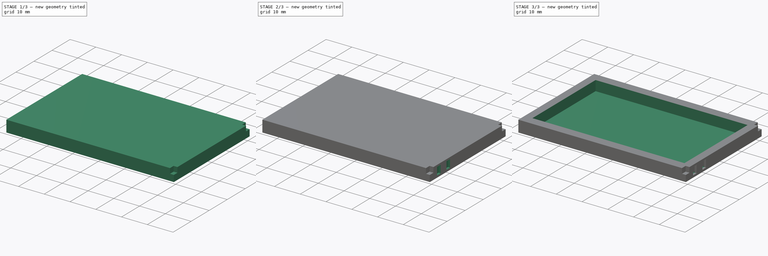
[diagram: build sequence overview — one tinted view per stage of 3, left to right]
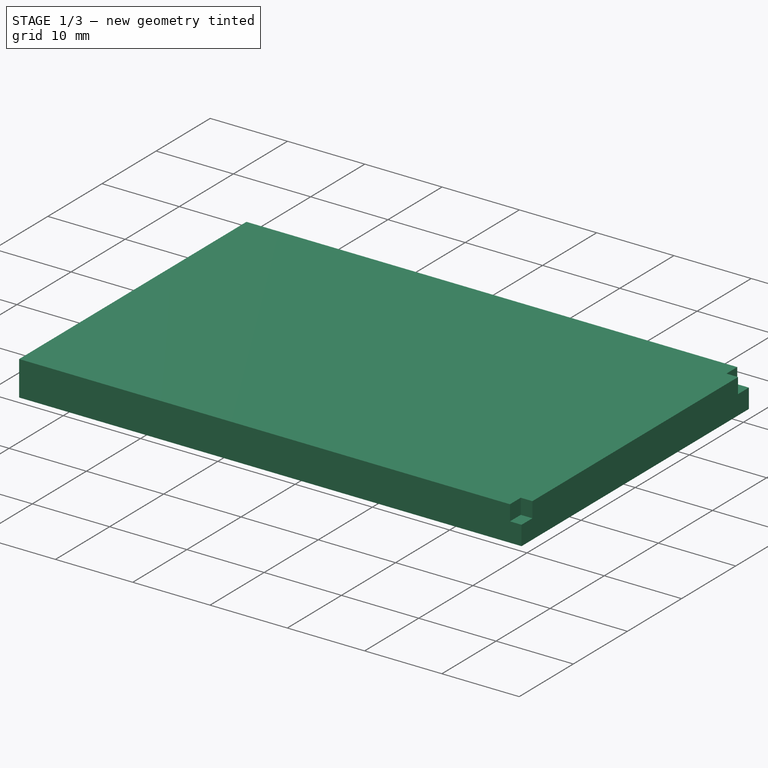
[diagram: stage 1 of 3 — iso view after this stage's code; geometry added in this stage tinted green]
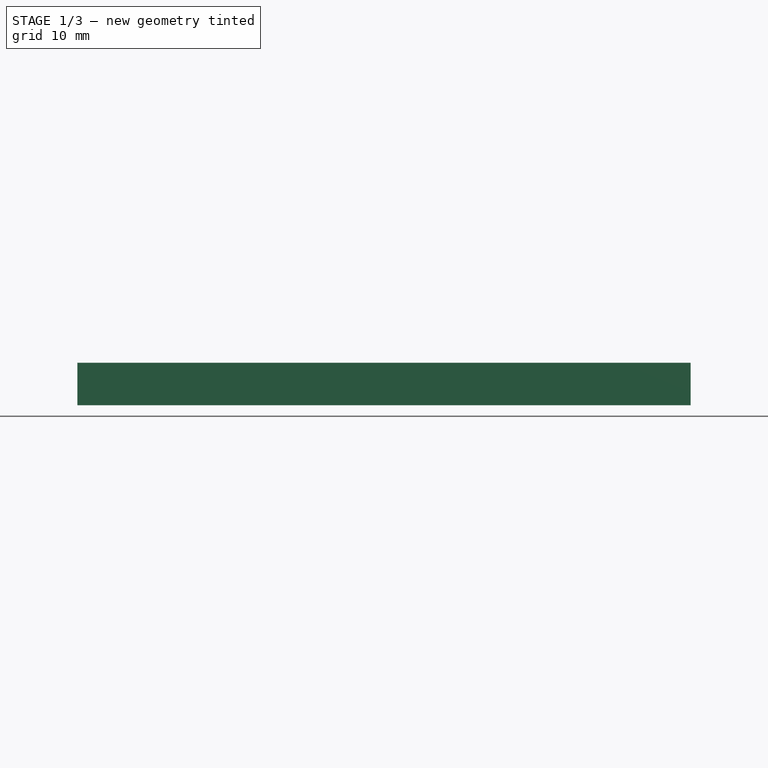
[diagram: stage 1 of 3 — front view after this stage's code; geometry added in this stage tinted green]
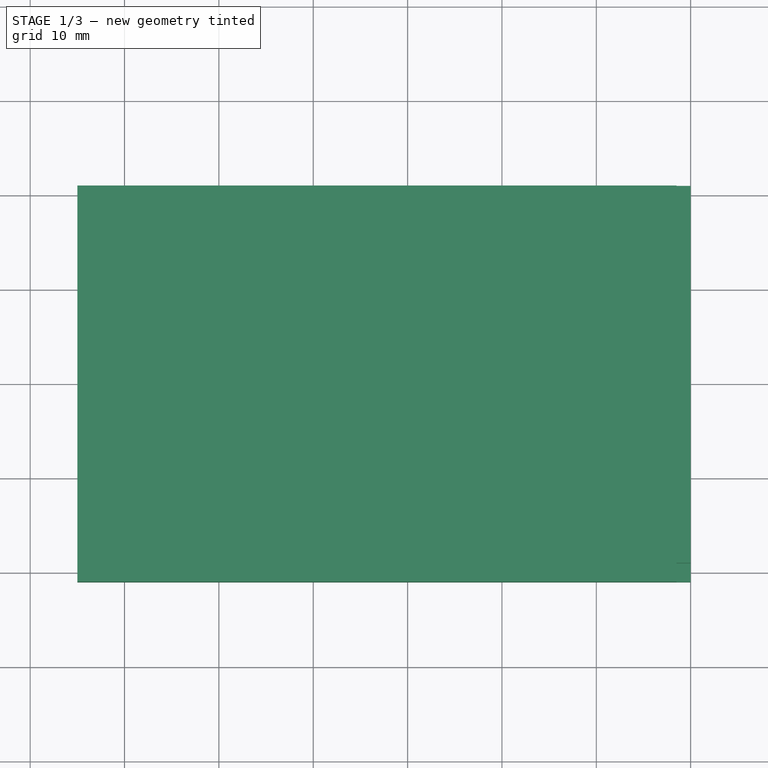
[diagram: stage 1 of 3 — top view after this stage's code; geometry added in this stage tinted green]
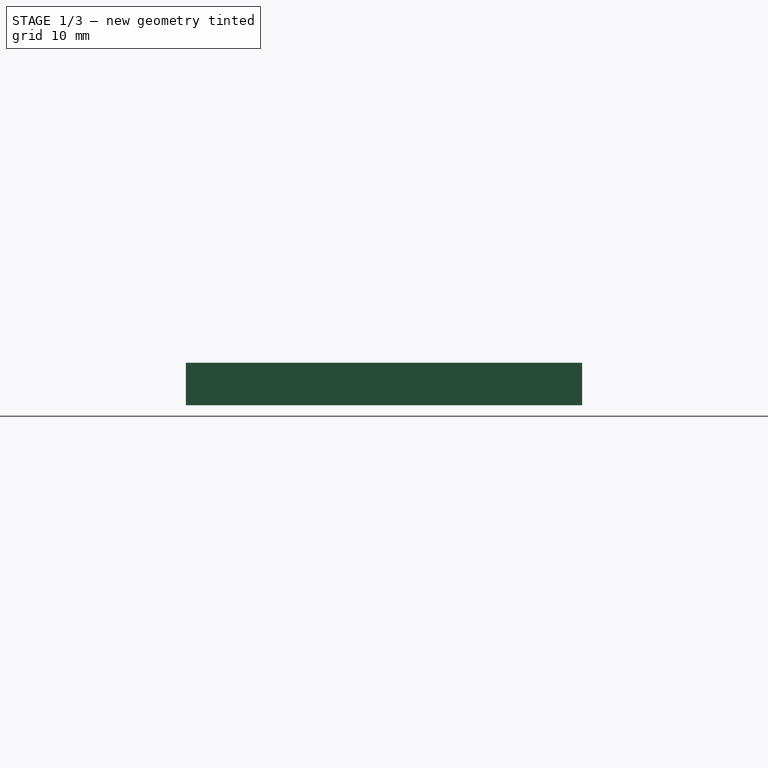
[diagram: stage 1 of 3 — right view after this stage's code; geometry added in this stage tinted green]
FCSTD DOCUMENT  (FreeCAD 0.18R14995 (Git))
Label: ZTEBatteryPowerAdapter
License: All rights reserved
LicenseURL: http://en.wikipedia.org/wiki/All_rights_reserved
objects: Sketcher::SketchObject×5, PartDesign::Pocket×4, PartDesign::Pad×1, PartDesign::Body×1, App::Part×1
note: 16 computed .brp shape members not serialized (recipe doc carries the construction recipe); baked Part::Feature solids carry a one-line shape summary decoded from their .brp

FEATURE [Sketcher::SketchObject] Sketch  label="BaseSketch"
  MapMode = 5
  Support = -> [XY_Plane001]
  sketch-geometry (4):
    g0: LineSegment StartX=-65 StartY=21 StartZ=0 EndX=0 EndY=21 EndZ=0
    g1: LineSegment StartX=0 StartY=21 StartZ=0 EndX=0 EndY=-21 EndZ=0
    g2: LineSegment StartX=0 StartY=-21 StartZ=0 EndX=-65 EndY=-21 EndZ=0
    g3: LineSegment StartX=-65 StartY=-21 StartZ=0 EndX=-65 EndY=21 EndZ=0
  constraints (11):
    c: Coincident(g0,g1)
    c: Coincident(g1,g2)
    c: Coincident(g2,g3)
    c: Coincident(g3,g0)
    c: Horizontal(g0)
    c: Vertical(g3)
    c: Symmetric(g1,g0,g-1)
    c: Distance(g0) = 65
    c: Distance(g3) = 42
    c: Horizontal(g2)
    c: PointOnObject(g1,g-2)
FEATURE [PartDesign::Pad] Pad  label="BasePad"
  Length = 4.5
  Length2 = 100
  Profile = -> Sketch
  Reversed = true
  Type = 0
FEATURE [Sketcher::SketchObject] Sketch001  label="CkipSketch"
  ExternalGeometry = -> [Sketch]
  MapMode = 5
  Placement = pos=(0,0,0) rot=(0.57735,0.57735,0.57735;2.0944rad)
  Support = -> [YZ_Plane001]
  sketch-geometry (8):
    g0: LineSegment StartX=-21 StartY=-1e-11 StartZ=0 EndX=-19 EndY=-1e-11 EndZ=0
    g1: LineSegment StartX=-19 StartY=-1e-11 StartZ=0 EndX=-19 EndY=-2 EndZ=0
    g2: LineSegment StartX=-19 StartY=-2 StartZ=0 EndX=-21 EndY=-2 EndZ=0
    g3: LineSegment StartX=-21 StartY=-2 StartZ=0 EndX=-21 EndY=-1e-11 EndZ=0
    g4: LineSegment StartX=21 StartY=-5e-12 StartZ=0 EndX=19 EndY=-5e-12 EndZ=0
    g5: LineSegment StartX=19 StartY=-5e-12 StartZ=0 EndX=19 EndY=-2 EndZ=0
    g6: LineSegment StartX=19 StartY=-2 StartZ=0 EndX=21 EndY=-2 EndZ=0
    g7: LineSegment StartX=21 StartY=-2 StartZ=0 EndX=21 EndY=-5e-12 EndZ=0
  constraints (22):
    c: Coincident(g0,g1)
    c: Coincident(g1,g2)
    c: Coincident(g2,g3)
    c: Coincident(g3,g0)
    c: Horizontal(g0)
    c: Horizontal(g2)
    c: Vertical(g1)
    c: Vertical(g3)
    c: Coincident(g0,g-3)
    c: Coincident(g4,g5)
    c: Coincident(g5,g6)
    c: Coincident(g6,g7)
    c: Coincident(g7,g4)
    c: Horizontal(g4)
    c: Horizontal(g6)
    c: Vertical(g5)
    c: Vertical(g7)
    c: Coincident(g4,g-4)
    c: Equal(g2,g6)
    c: Equal(g1,g5)
    c: Equal(g1,g2)
    c: Distance(g0) = 2
FEATURE [PartDesign::Pocket] Pocket  label="ClipPocket"
  BaseFeature = -> Pad
  Length = 1.5
  Length2 = 100
  Profile = -> Sketch001
  Type = 0
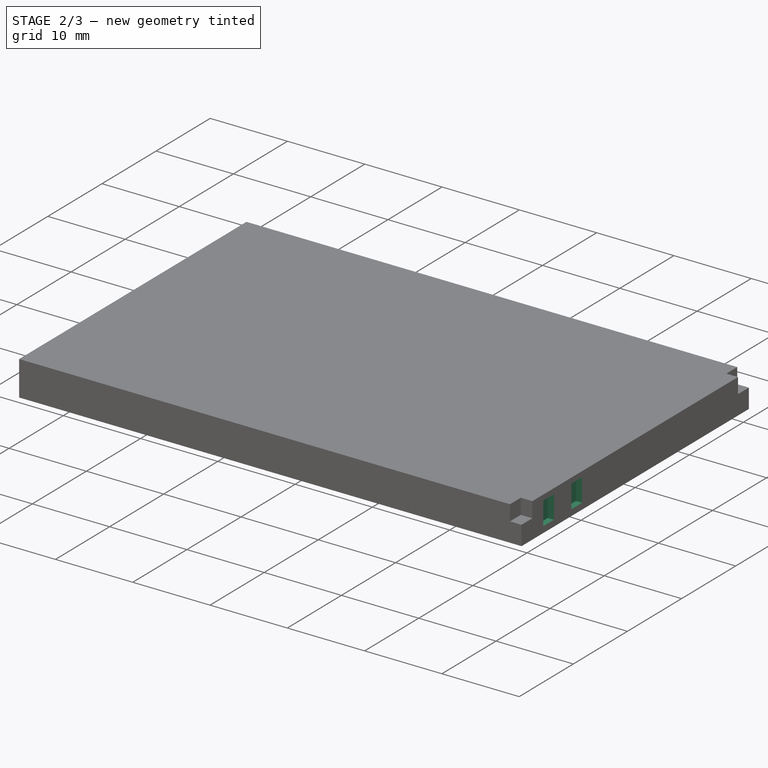
[diagram: stage 2 of 3 — iso view after this stage's code; geometry added in this stage tinted green]
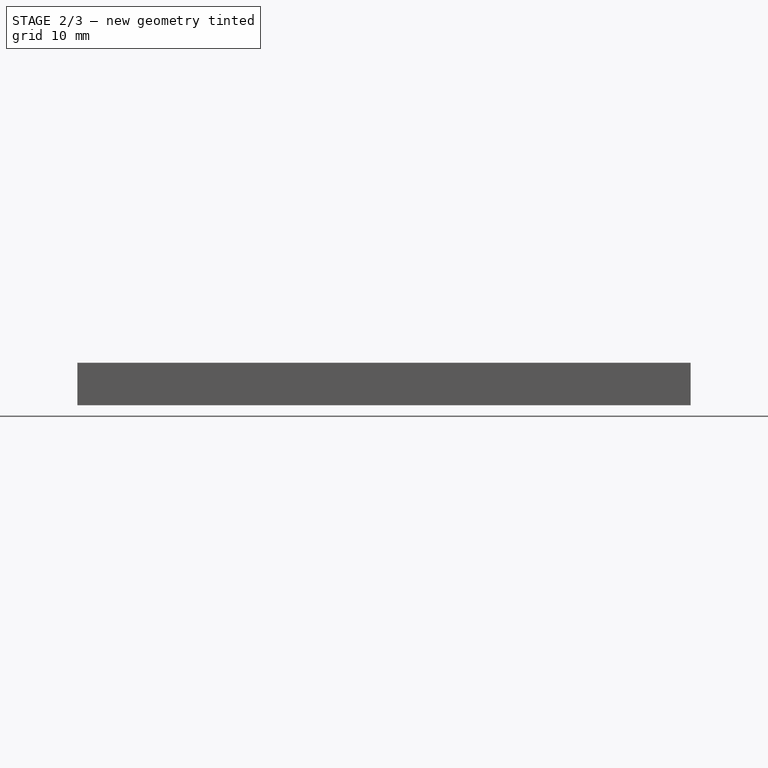
[diagram: stage 2 of 3 — front view after this stage's code; geometry added in this stage tinted green]
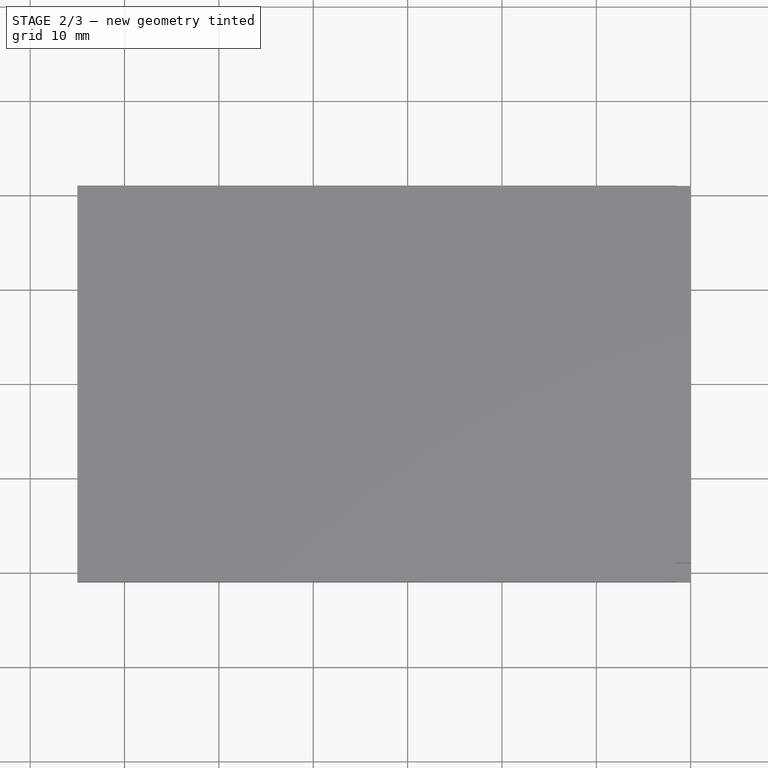
[diagram: stage 2 of 3 — top view after this stage's code; geometry added in this stage tinted green]
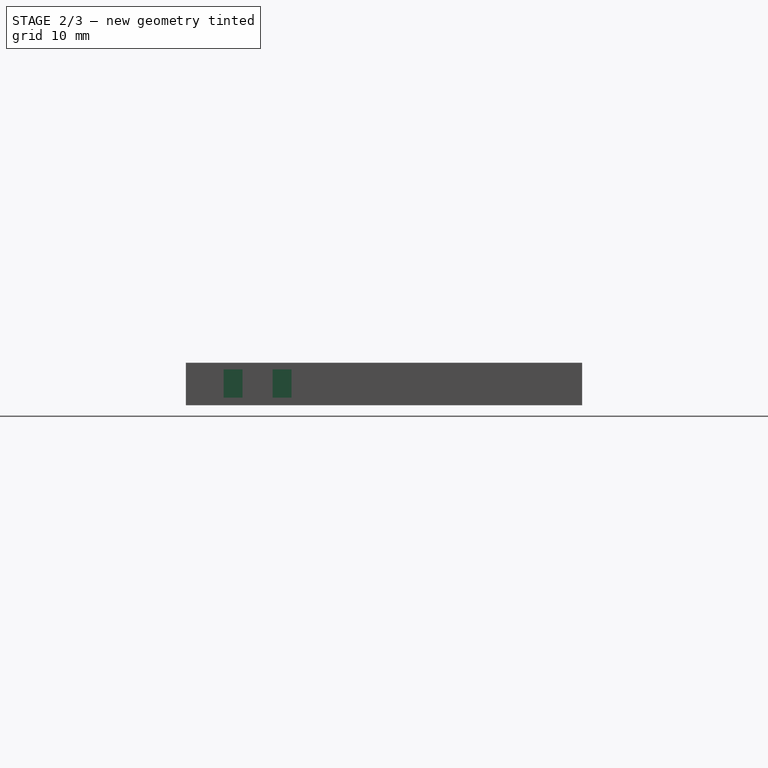
[diagram: stage 2 of 3 — right view after this stage's code; geometry added in this stage tinted green]
FEATURE [Sketcher::SketchObject] Sketch002  label="ContactPadsSketch"
  ExternalGeometry = -> [Sketch]
  MapMode = 5
  Placement = pos=(0,0,0) rot=(0.57735,0.57735,0.57735;2.0944rad)
  Support = -> [YZ_Plane001]
  sketch-geometry (9):
    g0: LineSegment StartX=-17 StartY=-0.7 StartZ=0 EndX=-15 EndY=-0.7 EndZ=0
    g1: LineSegment StartX=-15 StartY=-0.7 StartZ=0 EndX=-15 EndY=-3.7 EndZ=0
    g2: LineSegment StartX=-15 StartY=-3.7 StartZ=0 EndX=-17 EndY=-3.7 EndZ=0
    g3: LineSegment StartX=-17 StartY=-3.7 StartZ=0 EndX=-17 EndY=-0.7 EndZ=0
    g4: LineSegment StartX=-11.8 StartY=-0.7 StartZ=0 EndX=-9.8 EndY=-0.7 EndZ=0
    g5: LineSegment StartX=-9.8 StartY=-0.7 StartZ=0 EndX=-9.8 EndY=-3.7 EndZ=0
    g6: LineSegment StartX=-9.8 StartY=-3.7 StartZ=0 EndX=-11.8 EndY=-3.7 EndZ=0
    g7: LineSegment StartX=-11.8 StartY=-3.7 StartZ=0 EndX=-11.8 EndY=-0.7 EndZ=0
    g8: LineSegment [constr] StartX=-15 StartY=-0.7 StartZ=0 EndX=-11.8 EndY=-0.7 EndZ=0
  constraints (26):
    c: Coincident(g0,g1)
    c: Coincident(g1,g2)
    c: Coincident(g2,g3)
    c: Coincident(g3,g0)
    c: Horizontal(g0)
    c: Horizontal(g2)
    c: Vertical(g1)
    c: Vertical(g3)
    c: Coincident(g4,g5)
    c: Coincident(g5,g6)
    c: Coincident(g6,g7)
    c: Coincident(g7,g4)
    c: Horizontal(g4)
    c: Horizontal(g6)
    c: Vertical(g5)
    c: Vertical(g7)
    c: Equal(g0,g4)
    c: Equal(g1,g7)
    c: Coincident(g8,g4)
    c: Horizontal(g8)
    c: Coincident(g8,g0)
    c: Distance(g8) = 3.2
    c: Distance(g0) = 2
    c: Distance(g5) = 3
    c: Distance(g-3,g3) = 4
    c: DistanceY(g-1,g0) = -0.7
FEATURE [PartDesign::Pocket] Pocket001  label="ContactPadsPocket"
  BaseFeature = -> Pocket
  Length = 0.8
  Length2 = 100
  Profile = -> Sketch002
  Type = 0
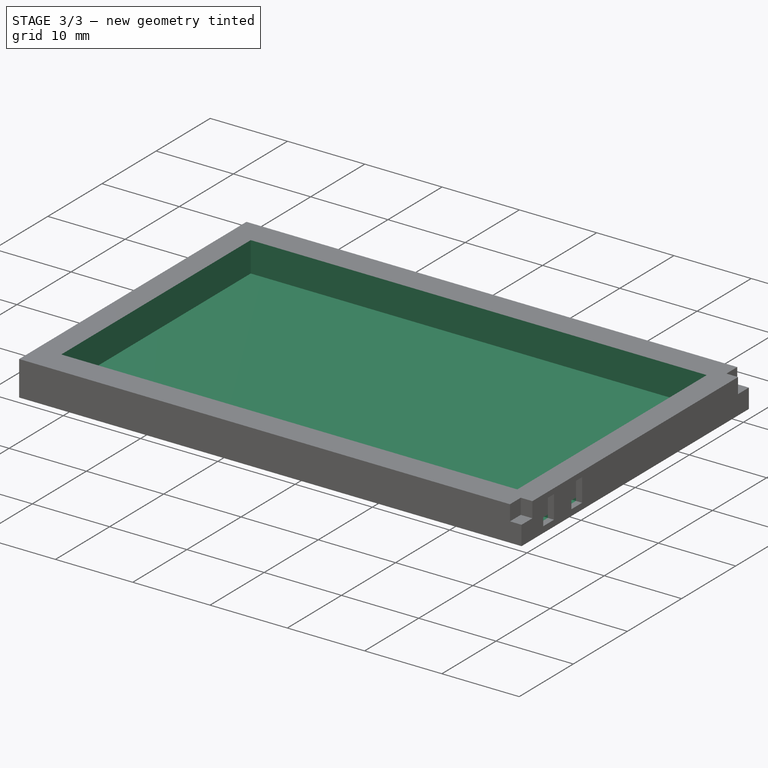
[diagram: stage 3 of 3 — iso view after this stage's code; geometry added in this stage tinted green]
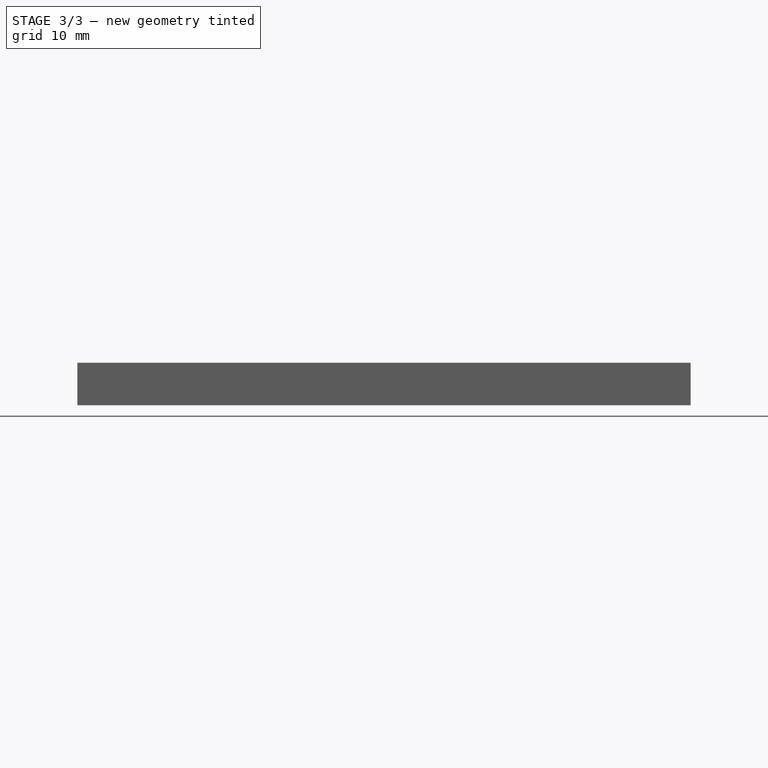
[diagram: stage 3 of 3 — front view after this stage's code; geometry added in this stage tinted green]
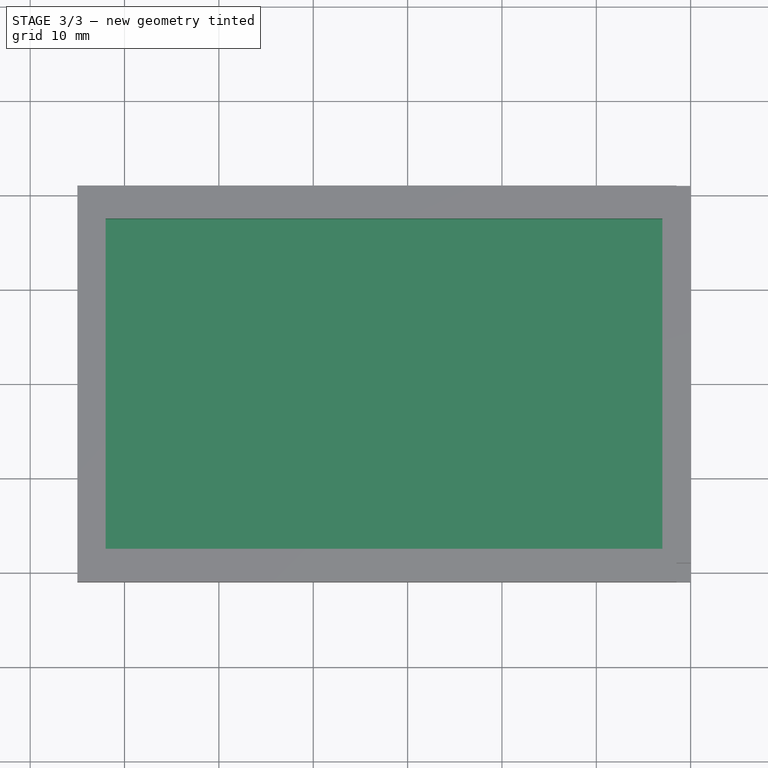
[diagram: stage 3 of 3 — top view after this stage's code; geometry added in this stage tinted green]
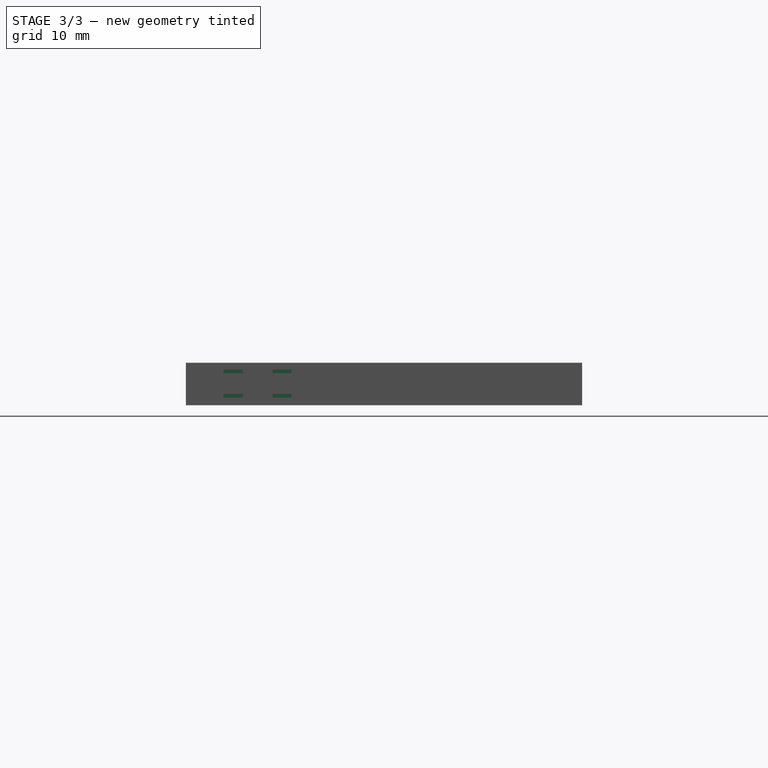
[diagram: stage 3 of 3 — right view after this stage's code; geometry added in this stage tinted green]
FEATURE [Sketcher::SketchObject] Sketch003  label="WiringNotchSketch"
  MapMode = 5
  Support = -> [XY_Plane001]
  sketch-geometry (4):
    g0: LineSegment StartX=-3 StartY=17.5 StartZ=0 EndX=-62 EndY=17.5 EndZ=0
    g1: LineSegment StartX=-62 StartY=17.5 StartZ=0 EndX=-62 EndY=-17.5 EndZ=0
    g2: LineSegment StartX=-62 StartY=-17.5 StartZ=0 EndX=-3 EndY=-17.5 EndZ=0
    g3: LineSegment StartX=-3 StartY=-17.5 StartZ=0 EndX=-3 EndY=17.5 EndZ=0
  constraints (11):
    c: Coincident(g0,g1)
    c: Coincident(g1,g2)
    c: Coincident(g2,g3)
    c: Coincident(g3,g0)
    c: Horizontal(g0)
    c: Horizontal(g2)
    c: Vertical(g1)
    c: Distance(g-1,g3) = 3
    c: Distance(g-1,g1) = 62
    c: Symmetric(g2,g0,g-1)
    c: Distance(g3) = 35
FEATURE [PartDesign::Pocket] Pocket002  label="WiringNotchPocket"
  BaseFeature = -> Pocket001
  Length = 3.9
  Length2 = 100
  Profile = -> Sketch003
  Type = 0
FEATURE [Sketcher::SketchObject] Sketch004  label="ContactPadsWiringNotchSketch"
  ExternalGeometry = -> [Sketch002]
  MapMode = 5
  Placement = pos=(0,0,0) rot=(0.57735,0.57735,0.57735;2.0944rad)
  Support = -> [YZ_Plane001]
  sketch-geometry (16):
    g0: LineSegment StartX=-17 StartY=-0.7 StartZ=0 EndX=-15 EndY=-0.7 EndZ=0
    g1: LineSegment StartX=-15 StartY=-0.7 StartZ=0 EndX=-15 EndY=-1.1 EndZ=0
    g2: LineSegment StartX=-15 StartY=-1.1 StartZ=0 EndX=-17 EndY=-1.1 EndZ=0
    g3: LineSegment StartX=-17 StartY=-1.1 StartZ=0 EndX=-17 EndY=-0.7 EndZ=0
    g4: LineSegment StartX=-17 StartY=-3.7 StartZ=0 EndX=-15 EndY=-3.7 EndZ=0
    g5: LineSegment StartX=-15 StartY=-3.7 StartZ=0 EndX=-15 EndY=-3.3 EndZ=0
    g6: LineSegment StartX=-15 StartY=-3.3 StartZ=0 EndX=-17 EndY=-3.3 EndZ=0
    g7: LineSegment StartX=-17 StartY=-3.3 StartZ=0 EndX=-17 EndY=-3.7 EndZ=0
    g8: LineSegment StartX=-11.8 StartY=-0.7 StartZ=0 EndX=-9.8 EndY=-0.7 EndZ=0
    g9: LineSegment StartX=-9.8 StartY=-0.7 StartZ=0 EndX=-9.8 EndY=-1.1 EndZ=0
    g10: LineSegment StartX=-9.8 StartY=-1.1 StartZ=0 EndX=-11.8 EndY=-1.1 EndZ=0
    g11: LineSegment StartX=-11.8 StartY=-1.1 StartZ=0 EndX=-11.8 EndY=-0.7 EndZ=0
    g12: LineSegment StartX=-11.8 StartY=-3.7 StartZ=0 EndX=-9.8 EndY=-3.7 EndZ=0
    g13: LineSegment StartX=-9.8 StartY=-3.7 StartZ=0 EndX=-9.8 EndY=-3.3 EndZ=0
    g14: LineSegment StartX=-9.8 StartY=-3.3 StartZ=0 EndX=-11.8 EndY=-3.3 EndZ=0
    g15: LineSegment StartX=-11.8 StartY=-3.3 StartZ=0 EndX=-11.8 EndY=-3.7 EndZ=0
  constraints (44):
    c: Coincident(g0,g1)
    c: Coincident(g1,g2)
    c: Coincident(g2,g3)
    c: Coincident(g3,g0)
    c: Horizontal(g0)
    c: Horizontal(g2)
    c: Vertical(g1)
    c: Vertical(g3)
    c: Coincident(g0,g-3)
    c: PointOnObject(g1,g-4)
    c: Coincident(g4,g5)
    c: Coincident(g5,g6)
    c: Coincident(g6,g7)
    c: Coincident(g7,g4)
    c: Horizontal(g4)
    c: Horizontal(g6)
    c: Vertical(g5)
    c: Vertical(g7)
    c: Coincident(g4,g-3)
    c: PointOnObject(g5,g-4)
    c: Coincident(g8,g9)
    c: Coincident(g9,g10)
    c: Coincident(g10,g11)
    c: Coincident(g11,g8)
    c: Horizontal(g8)
    c: Horizontal(g10)
    c: Vertical(g9)
    c: Vertical(g11)
    c: Coincident(g8,g-5)
    c: PointOnObject(g9,g-6)
    c: Coincident(g12,g13)
    c: Coincident(g13,g14)
    c: Coincident(g14,g15)
    c: Coincident(g15,g12)
    c: Horizontal(g12)
    c: Horizontal(g14)
    c: Vertical(g13)
    c: Vertical(g15)
    c: Coincident(g12,g-5)
    c: PointOnObject(g13,g-6)
    c: Equal(g5,g15)
    c: Equal(g15,g1)
    c: Equal(g1,g11)
    c: Distance(g3) = 0.4
FEATURE [PartDesign::Pocket] Pocket003  label="ContactPadsWiringNotchPocket"
  BaseFeature = -> Pocket002
  Length = 5
  Length2 = 100
  Profile = -> Sketch004
  Type = 0
FEATURE [PartDesign::Body] Body  label="AdapterBody"
  Group = -> [Sketch,Pad,Sketch001,Pocket,Sketch002,Pocket001,Sketch003,Pocket002,Sketch004,Pocket003]
  Origin = -> Origin001
  Tip = -> Pocket003
FEATURE [App::Part] Part  label="AdapterPart"
  Group = -> [Body]
  License = CC BY 3.0
  LicenseURL = http://creativecommons.org/licenses/by/3.0/
  Origin = -> Origin
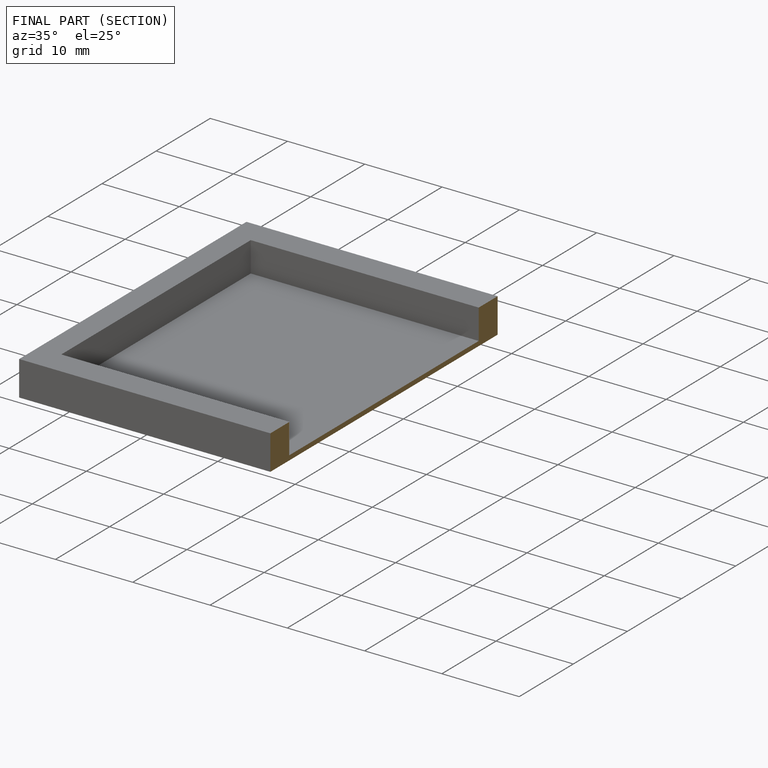
[diagram: finished part — half-section view (interior)]
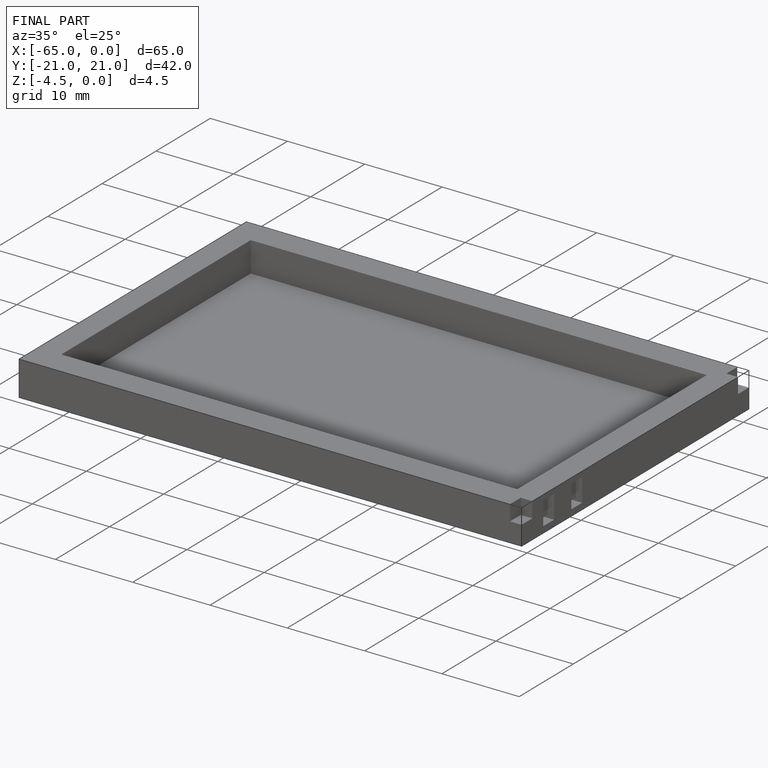
[diagram: finished part — iso view with bounding-box wireframe]
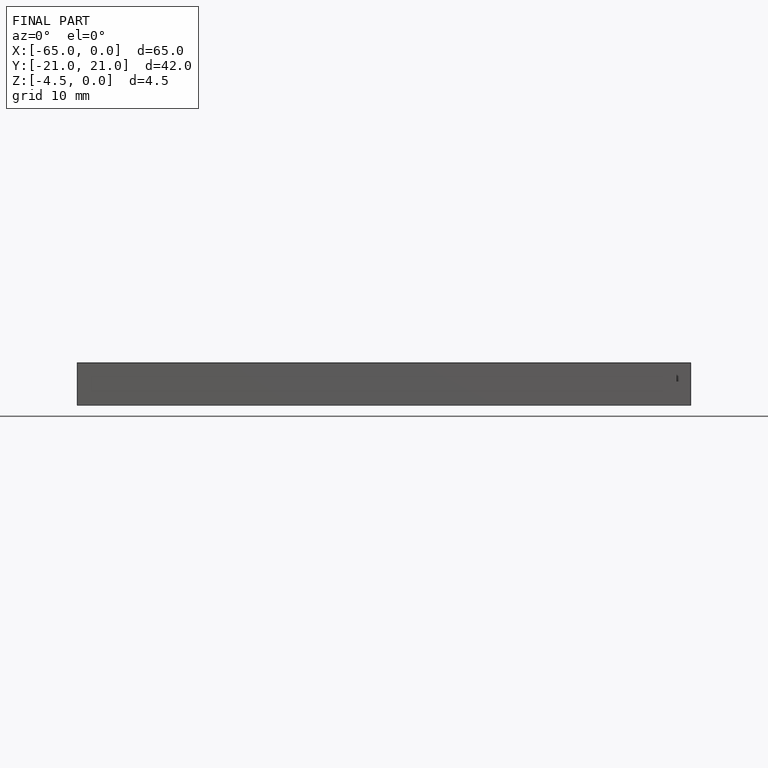
[diagram: finished part — front view with bounding-box wireframe]
